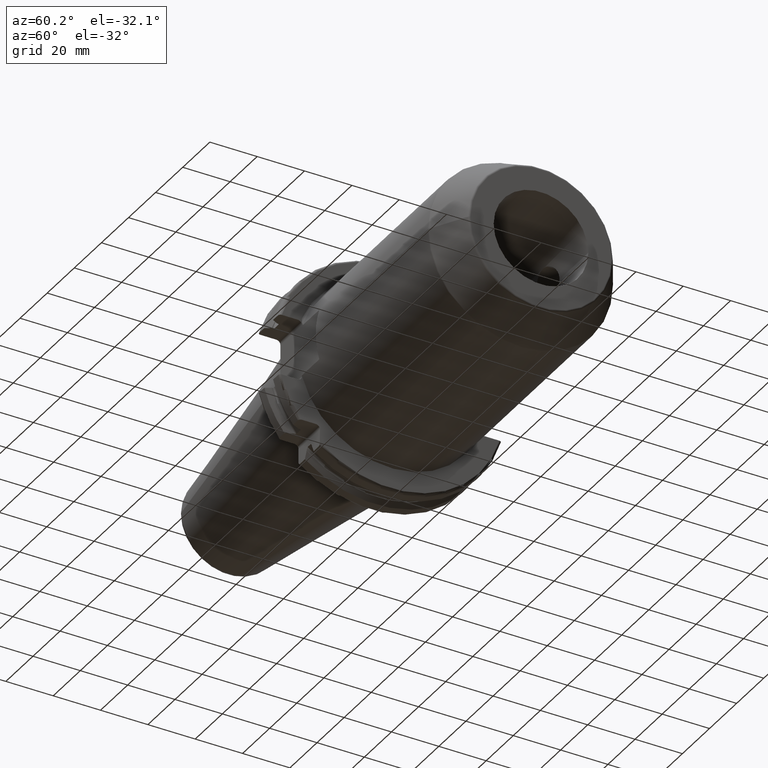
[diagram: clean part render]
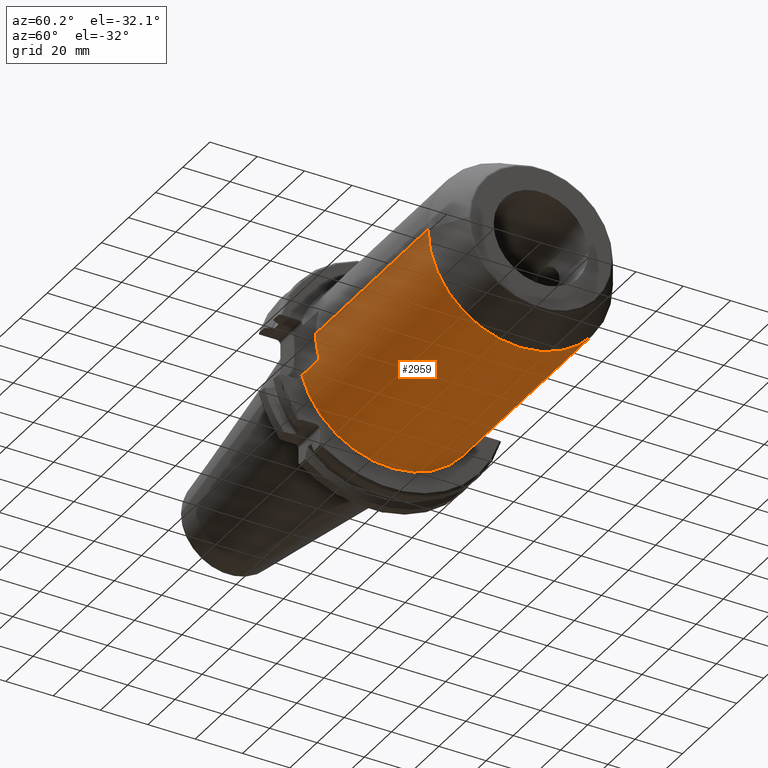
[diagram: same view with one face highlighted and labeled with its STEP entity id]
A machine part, auxiliary view. The second image highlights one B-rep face of the part: STEP entity #2959.
In plain terms, the highlighted cylindrical surface (partial cylindrical patch) has radius 39 mm, axis along (1, 0, 0).
Its self-contained STEP definition (entity closure, byte-faithful):
#164=CARTESIAN_POINT('',(1.905E1,0.E0,0.E0));
#165=DIRECTION('',(1.E0,0.E0,0.E0));
#166=DIRECTION('',(0.E0,-9.615384615385E-1,-2.746703241747E-1));
#167=AXIS2_PLACEMENT_3D('',#164,#165,#166);
#1021=CARTESIAN_POINT('',(7.675E1,3.9E1,0.E0));
#1044=CARTESIAN_POINT('',(5.925E1,3.9E1,0.E0));
#1081=DIRECTION('',(1.E0,0.E0,0.E0));
#1082=VECTOR('',#1081,1.29E1);
#1083=CARTESIAN_POINT('',(1.905E1,-3.75E1,-1.071214264281E1));
#1084=LINE('',#1083,#1082);
#1085=CARTESIAN_POINT('',(3.195E1,0.E0,0.E0));
#1086=DIRECTION('',(1.E0,0.E0,0.E0));
#1087=DIRECTION('',(0.E0,-1.E0,0.E0));
#1088=AXIS2_PLACEMENT_3D('',#1085,#1086,#1087);
#1090=DIRECTION('',(-1.E0,0.E0,-5.511276046135E-14));
#1091=VECTOR('',#1090,8.278205080757E1);
#1092=CARTESIAN_POINT('',(1.147320508076E2,-3.9E1,4.557463893453E-12));
#1093=LINE('',#1092,#1091);
#1094=CARTESIAN_POINT('',(1.147320508076E2,0.E0,0.E0));
#1095=DIRECTION('',(-1.E0,0.E0,0.E0));
#1096=DIRECTION('',(0.E0,1.E0,0.E0));
#1097=AXIS2_PLACEMENT_3D('',#1094,#1095,#1096);
#1099=DIRECTION('',(-1.E0,0.E0,7.653510612412E-13));
#1100=VECTOR('',#1099,5.982050807569E0);
#1101=CARTESIAN_POINT('',(1.147320508076E2,3.9E1,-4.575977403266E-12));
#1102=LINE('',#1101,#1100);
#1103=CARTESIAN_POINT('',(9.125E1,3.9E1,0.E0));
#1104=CARTESIAN_POINT('',(9.125E1,3.9E1,-4.337135949173E-1));
#1105=CARTESIAN_POINT('',(9.131356726673E1,3.898566047134E1,-1.292974043298E0));
#1106=CARTESIAN_POINT('',(9.160236328735E1,3.892188679919E1,-2.571837222396E0));
#1107=CARTESIAN_POINT('',(9.207791042689E1,3.882132448251E1,-3.791842034137E0));
#1108=CARTESIAN_POINT('',(9.273582929572E1,3.869148034361E1,-4.937033467127E0));
#1109=CARTESIAN_POINT('',(9.355757067738E1,3.854450715886E1,-5.970178990432E0));
#1110=CARTESIAN_POINT('',(9.453278203882E1,3.839243159879E1,-6.874194202296E0));
#1111=CARTESIAN_POINT('',(9.562182480715E1,3.825145804241E1,-7.614039019113E0));
#1112=CARTESIAN_POINT('',(9.681369779335E1,3.813260805111E1,-8.184250474852E0));
#1113=CARTESIAN_POINT('',(9.805858296617E1,3.804821406462E1,-8.565043969779E0));
#1114=CARTESIAN_POINT('',(9.935283992856E1,3.800388077411E1,-8.758211992637E0));
#1115=CARTESIAN_POINT('',(1.006464810872E2,3.800386721177E1,-8.758271361117E0));
#1116=CARTESIAN_POINT('',(1.019408681355E2,3.804818762965E1,-8.565158252146E0));
#1117=CARTESIAN_POINT('',(1.031855389847E2,3.813254258202E1,-8.184557925760E0));
#1118=CARTESIAN_POINT('',(1.043777824505E2,3.825141358738E1,-7.614251592851E0));
#1119=CARTESIAN_POINT('',(1.054664500639E2,3.839232127463E1,-6.874819698200E0));
#1120=CARTESIAN_POINT('',(1.064422331825E2,3.854447350883E1,-5.970376922434E0));
#1121=CARTESIAN_POINT('',(1.072635020279E2,3.869135549790E1,-4.938012044E0));
#1122=CARTESIAN_POINT('',(1.079219870039E2,3.882130134425E1,-3.792104398988E0));
#1123=CARTESIAN_POINT('',(1.083974393604E2,3.892184471815E1,-2.572474042145E0));
#1124=CARTESIAN_POINT('',(1.086864602051E2,3.898566607478E1,-1.292987232439E0));
#1125=CARTESIAN_POINT('',(1.0875E2,3.9E1,-4.337104123297E-1));
#1126=CARTESIAN_POINT('',(1.0875E2,3.9E1,0.E0));
#1128=DIRECTION('',(-1.E0,0.E0,0.E0));
#1129=VECTOR('',#1128,1.45E1);
#1130=CARTESIAN_POINT('',(9.125E1,3.9E1,0.E0));
#1131=LINE('',#1130,#1129);
#1132=CARTESIAN_POINT('',(5.925E1,3.9E1,0.E0));
#1133=CARTESIAN_POINT('',(5.925E1,3.9E1,-4.337135949173E-1));
#1134=CARTESIAN_POINT('',(5.931356726673E1,3.898566047134E1,-1.292974043298E0));
#1135=CARTESIAN_POINT('',(5.960236328735E1,3.892188679919E1,-2.571837222396E0));
#1136=CARTESIAN_POINT('',(6.007791042689E1,3.882132448251E1,-3.791842034137E0));
#1137=CARTESIAN_POINT('',(6.073582929572E1,3.869148034361E1,-4.937033467127E0));
#1138=CARTESIAN_POINT('',(6.155757067738E1,3.854450715886E1,-5.970178990432E0));
#1139=CARTESIAN_POINT('',(6.253278203882E1,3.839243159879E1,-6.874194202296E0));
#1140=CARTESIAN_POINT('',(6.362182480715E1,3.825145804241E1,-7.614039019113E0));
#1141=CARTESIAN_POINT('',(6.481369779335E1,3.813260805111E1,-8.184250474852E0));
#1142=CARTESIAN_POINT('',(6.605858296617E1,3.804821406462E1,-8.565043969779E0));
#1143=CARTESIAN_POINT('',(6.735283992856E1,3.800388077411E1,-8.758211992637E0));
#1144=CARTESIAN_POINT('',(6.864648108723E1,3.800386721177E1,-8.758271361117E0));
#1145=CARTESIAN_POINT('',(6.994086813547E1,3.804818762965E1,-8.565158252146E0));
#1146=CARTESIAN_POINT('',(7.118553898473E1,3.813254258202E1,-8.184557925760E0));
#1147=CARTESIAN_POINT('',(7.237778245047E1,3.825141358738E1,-7.614251592851E0));
#1148=CARTESIAN_POINT('',(7.346645006390E1,3.839232127463E1,-6.874819698200E0));
#1149=CARTESIAN_POINT('',(7.444223318248E1,3.854447350883E1,-5.970376922434E0));
#1150=CARTESIAN_POINT('',(7.526350202794E1,3.869135549790E1,-4.938012044E0));
#1151=CARTESIAN_POINT('',(7.592198700387E1,3.882130134425E1,-3.792104398988E0));
#1152=CARTESIAN_POINT('',(7.639743936042E1,3.892184471815E1,-2.572474042145E0));
#1153=CARTESIAN_POINT('',(7.668646020511E1,3.898566607478E1,-1.292987232439E0));
#1154=CARTESIAN_POINT('',(7.675E1,3.9E1,-4.337104123297E-1));
#1155=CARTESIAN_POINT('',(7.675E1,3.9E1,0.E0));
#1157=DIRECTION('',(-1.E0,0.E0,0.E0));
#1158=VECTOR('',#1157,2.73E1);
#1159=CARTESIAN_POINT('',(5.925E1,3.9E1,0.E0));
#1160=LINE('',#1159,#1158);
#1161=CARTESIAN_POINT('',(3.195E1,0.E0,0.E0));
#1162=DIRECTION('',(1.E0,0.E0,0.E0));
#1163=DIRECTION('',(0.E0,9.051282051282E-1,-4.251387212210E-1));
#1164=AXIS2_PLACEMENT_3D('',#1161,#1162,#1163);
#1166=DIRECTION('',(1.E0,0.E0,0.E0));
#1167=VECTOR('',#1166,1.29E1);
#1168=CARTESIAN_POINT('',(1.905E1,3.53E1,-1.658041012762E1));
#1169=LINE('',#1168,#1167);
#1802=CARTESIAN_POINT('',(1.0875E2,3.9E1,0.E0));
#1804=VERTEX_POINT('',#1802);
#1806=CARTESIAN_POINT('',(9.125E1,3.9E1,0.E0));
#1808=VERTEX_POINT('',#1806);
#1811=CARTESIAN_POINT('',(1.147320508076E2,3.9E1,0.E0));
#1812=CARTESIAN_POINT('',(1.147320508076E2,-3.9E1,0.E0));
#1813=VERTEX_POINT('',#1811);
#1814=VERTEX_POINT('',#1812);
#1827=VERTEX_POINT('',#1021);
#1828=VERTEX_POINT('',#1044);
#1858=CARTESIAN_POINT('',(3.195E1,3.9E1,0.E0));
#1859=VERTEX_POINT('',#1858);
#1860=CARTESIAN_POINT('',(1.905E1,3.53E1,-1.658041012762E1));
#1861=CARTESIAN_POINT('',(3.195E1,3.53E1,-1.658041012762E1));
#1862=VERTEX_POINT('',#1860);
#1863=VERTEX_POINT('',#1861);
#1871=CARTESIAN_POINT('',(3.195E1,-3.9E1,0.E0));
#1872=VERTEX_POINT('',#1871);
#1873=CARTESIAN_POINT('',(1.905E1,-3.75E1,-1.071214264281E1));
#1874=CARTESIAN_POINT('',(3.195E1,-3.75E1,-1.071214264281E1));
#1875=VERTEX_POINT('',#1873);
#1876=VERTEX_POINT('',#1874);
#2936=CARTESIAN_POINT('',(1.35025E1,0.E0,0.E0));
#2937=DIRECTION('',(1.E0,0.E0,0.E0));
#2938=DIRECTION('',(0.E0,-1.E0,0.E0));
#2939=AXIS2_PLACEMENT_3D('',#2936,#2937,#2938);
#2940=CYLINDRICAL_SURFACE('',#2939,3.9E1);
#2941=ORIENTED_EDGE('',*,*,#2154,.T.);
#2943=ORIENTED_EDGE('',*,*,#2942,.F.);
#2944=ORIENTED_EDGE('',*,*,#2917,.F.);
#2946=ORIENTED_EDGE('',*,*,#2945,.F.);
#2947=ORIENTED_EDGE('',*,*,#2913,.T.);
#2949=ORIENTED_EDGE('',*,*,#2948,.F.);
#2950=ORIENTED_EDGE('',*,*,#2909,.T.);
#2952=ORIENTED_EDGE('',*,*,#2951,.F.);
#2953=ORIENTED_EDGE('',*,*,#2905,.T.);
#2954=ORIENTED_EDGE('',*,*,#2931,.F.);
#2955=ORIENTED_EDGE('',*,*,#2037,.F.);
#2956=ORIENTED_EDGE('',*,*,#2104,.F.);
#2957=EDGE_LOOP('',(#2941,#2943,#2944,#2946,#2947,#2949,#2950,#2952,#2953,#2954,
#2955,#2956));
#2958=FACE_OUTER_BOUND('',#2957,.F.);
#2959=ADVANCED_FACE('',(#2958),#2940,.T.);
#168=CIRCLE('',#167,3.9E1);
#1089=CIRCLE('',#1088,3.9E1);
#1098=CIRCLE('',#1097,3.9E1);
#1127=B_SPLINE_CURVE_WITH_KNOTS('',3,(#1103,#1104,#1105,#1106,#1107,#1108,#1109,
#1110,#1111,#1112,#1113,#1114,#1115,#1116,#1117,#1118,#1119,#1120,#1121,#1122,
#1123,#1124,#1125,#1126),.UNSPECIFIED.,.F.,.F.,(4,1,1,1,1,1,1,1,1,1,1,1,1,1,1,1,
1,1,1,1,1,4),(0.E0,4.761904761905E-2,9.523809523810E-2,1.428571428571E-1,
1.904761904762E-1,2.380952380952E-1,2.857142857143E-1,3.333333333333E-1,
3.809523809524E-1,4.285714285714E-1,4.761904761905E-1,5.238095238095E-1,
5.714285714286E-1,6.190476190476E-1,6.666666666667E-1,7.142857142857E-1,
7.619047619048E-1,8.095238095238E-1,8.571428571429E-1,9.047619047619E-1,
9.523809523810E-1,1.E0),.UNSPECIFIED.);
#1156=B_SPLINE_CURVE_WITH_KNOTS('',3,(#1132,#1133,#1134,#1135,#1136,#1137,#1138,
#1139,#1140,#1141,#1142,#1143,#1144,#1145,#1146,#1147,#1148,#1149,#1150,#1151,
#1152,#1153,#1154,#1155),.UNSPECIFIED.,.F.,.F.,(4,1,1,1,1,1,1,1,1,1,1,1,1,1,1,1,
1,1,1,1,1,4),(0.E0,4.761904761905E-2,9.523809523810E-2,1.428571428571E-1,
1.904761904762E-1,2.380952380952E-1,2.857142857143E-1,3.333333333333E-1,
3.809523809524E-1,4.285714285714E-1,4.761904761905E-1,5.238095238095E-1,
5.714285714286E-1,6.190476190476E-1,6.666666666667E-1,7.142857142857E-1,
7.619047619048E-1,8.095238095238E-1,8.571428571429E-1,9.047619047619E-1,
9.523809523810E-1,1.E0),.UNSPECIFIED.);
#1165=CIRCLE('',#1164,3.9E1);
#2037=EDGE_CURVE('',#1862,#1863,#1169,.T.);
#2104=EDGE_CURVE('',#1875,#1862,#168,.T.);
#2154=EDGE_CURVE('',#1875,#1876,#1084,.T.);
#2905=EDGE_CURVE('',#1828,#1859,#1160,.T.);
#2909=EDGE_CURVE('',#1808,#1827,#1131,.T.);
#2913=EDGE_CURVE('',#1813,#1804,#1102,.T.);
#2917=EDGE_CURVE('',#1814,#1872,#1093,.T.);
#2931=EDGE_CURVE('',#1863,#1859,#1165,.T.);
#2942=EDGE_CURVE('',#1872,#1876,#1089,.T.);
#2945=EDGE_CURVE('',#1813,#1814,#1098,.T.);
#2948=EDGE_CURVE('',#1808,#1804,#1127,.T.);
#2951=EDGE_CURVE('',#1828,#1827,#1156,.T.);